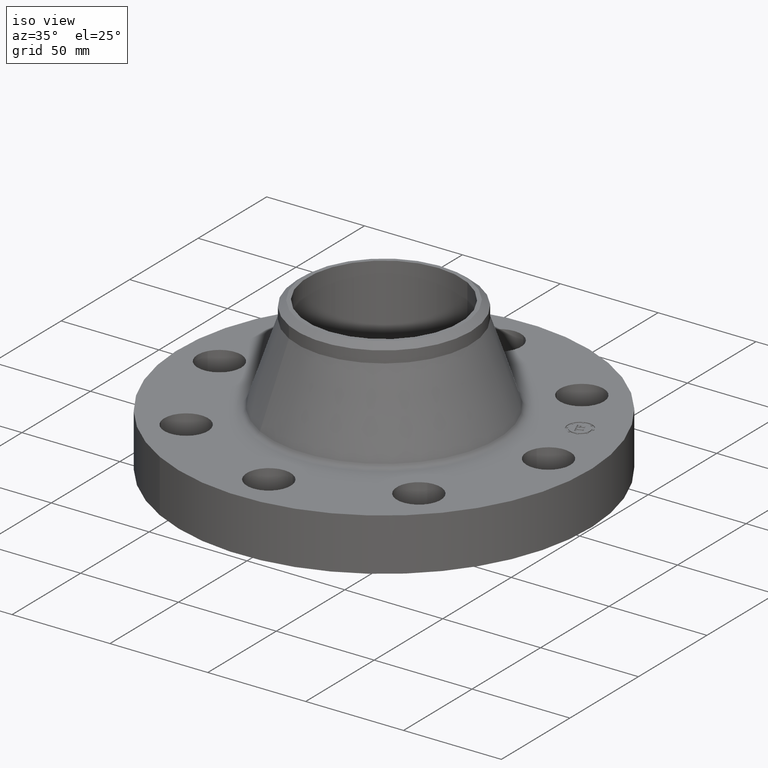
[diagram: clean part render]
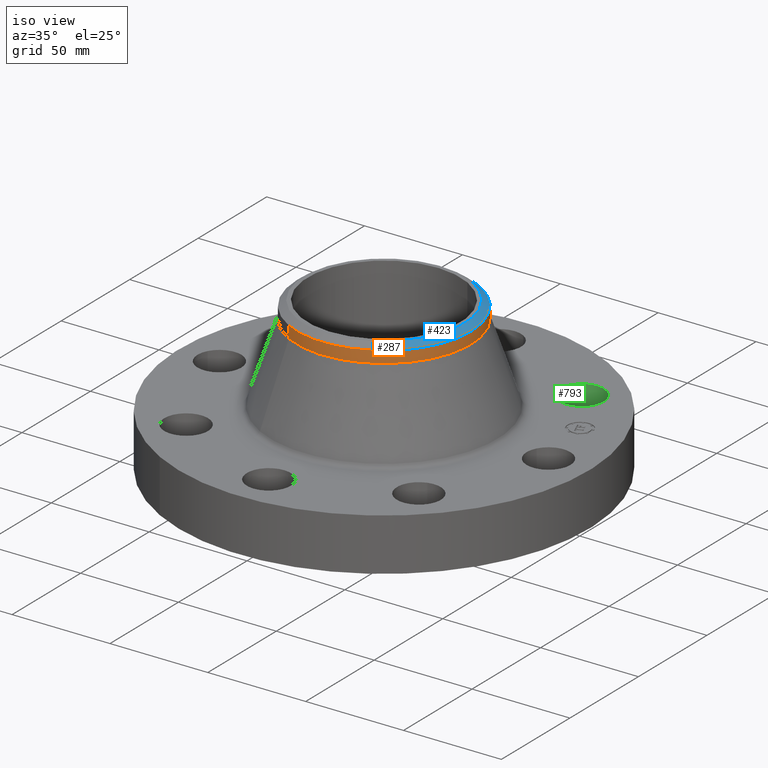
[diagram: same view with three faces highlighted in distinct colors, each labeled with its STEP entity id]
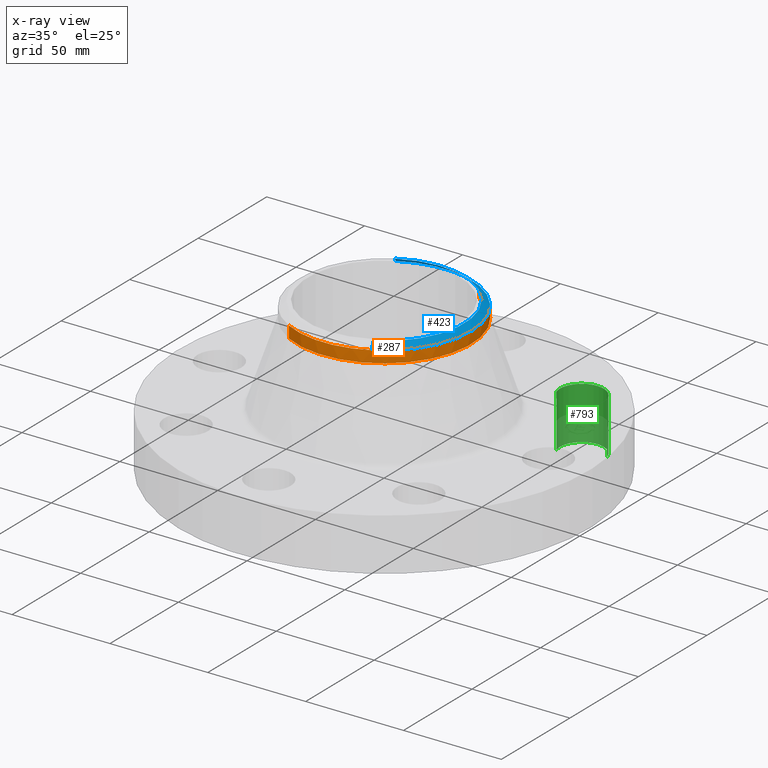
[diagram: x-ray of the same camera — body ghosted, the three highlighted faces saturated]
A machine part, iso view with three faces highlighted in distinct colors.
The next image is the same camera in x-ray (body ghosted, the three faces saturated) — at least one of them is partly hidden behind the body in this view.
Their STEP definitions:

[orange] entity #287 — the highlighted cylindrical surface (partial cylindrical patch) has radius 44.45 mm, axis along (0, 0, -1).
#220=AXIS2_PLACEMENT_3D('Circle Axis2P3D',#218,#219,$) ;
#252=AXIS2_PLACEMENT_3D('Cylinder Axis2P3D',#249,#250,#251) ;
#270=AXIS2_PLACEMENT_3D('Circle Axis2P3D',#268,#269,$) ;
#277=AXIS2_PLACEMENT_3D('Circle Axis2P3D',#275,#276,$) ;
#215=CARTESIAN_POINT('Vertex',(0.838994692561,1.53576948331,2.71845634604)) ;
#218=CARTESIAN_POINT('Axis2P3D Location',(0.,0.,2.71845634604)) ;
#222=CARTESIAN_POINT('Vertex',(-0.838994692561,-1.53576948331,2.71845634604)) ;
#249=CARTESIAN_POINT('Axis2P3D Location',(0.,0.,1.53000000001)) ;
#254=CARTESIAN_POINT('Line Origine',(-0.838994692561,-1.53576948331,2.83656658226)) ;
#258=CARTESIAN_POINT('Vertex',(-0.838994692561,-1.53576948331,2.95467681848)) ;
#261=CARTESIAN_POINT('Line Origine',(0.838994692561,1.53576948331,2.83656658226)) ;
#265=CARTESIAN_POINT('Vertex',(0.838994692561,1.53576948331,2.95467681848)) ;
#268=CARTESIAN_POINT('Axis2P3D Location',(0.,0.,2.95467681848)) ;
#272=CARTESIAN_POINT('Vertex',(0.838994692561,-1.53576948331,2.95467681848)) ;
#275=CARTESIAN_POINT('Axis2P3D Location',(0.,0.,2.95467681848)) ;
#219=DIRECTION('Axis2P3D Direction',(0.,0.,-0.0393700787402)) ;
#250=DIRECTION('Axis2P3D Direction',(0.,0.,-0.0393700787402)) ;
#251=DIRECTION('Axis2P3D XDirection',(-0.0188750212049,-0.0345504945626,0.)) ;
#255=DIRECTION('Vector Direction',(0.,0.,-0.0393700787402)) ;
#262=DIRECTION('Vector Direction',(0.,0.,-0.0393700787402)) ;
#269=DIRECTION('Axis2P3D Direction',(0.,0.,-0.0393700787402)) ;
#276=DIRECTION('Axis2P3D Direction',(0.,0.,-0.0393700787402)) ;
#256=VECTOR('Line Direction',#255,0.0393700787402) ;
#263=VECTOR('Line Direction',#262,0.0393700787402) ;
#281=ORIENTED_EDGE('',*,*,#260,.F.) ;
#282=ORIENTED_EDGE('',*,*,#224,.F.) ;
#283=ORIENTED_EDGE('',*,*,#267,.T.) ;
#284=ORIENTED_EDGE('',*,*,#274,.F.) ;
#285=ORIENTED_EDGE('',*,*,#279,.T.) ;
#287=ADVANCED_FACE('PartBody',(#286),#253,.T.) ;
#221=CIRCLE('generated circle',#220,1.75000000001) ;
#271=CIRCLE('generated circle',#270,1.75000000001) ;
#278=CIRCLE('generated circle',#277,1.75000000001) ;
#253=CYLINDRICAL_SURFACE('generated cylinder',#252,1.75000000001) ;
#224=EDGE_CURVE('',#216,#223,#221,.T.) ;
#260=EDGE_CURVE('',#223,#259,#257,.F.) ;
#267=EDGE_CURVE('',#216,#266,#264,.F.) ;
#274=EDGE_CURVE('',#273,#266,#271,.F.) ;
#279=EDGE_CURVE('',#273,#259,#278,.T.) ;
#280=EDGE_LOOP('',(#281,#282,#283,#284,#285)) ;
#286=FACE_OUTER_BOUND('',#280,.T.) ;
#257=LINE('Line',#254,#256) ;
#264=LINE('Line',#261,#263) ;
#216=VERTEX_POINT('',#215) ;
#223=VERTEX_POINT('',#222) ;
#259=VERTEX_POINT('',#258) ;
#266=VERTEX_POINT('',#265) ;
#273=VERTEX_POINT('',#272) ;

[blue] entity #423 — the highlighted conical surface has half-angle 52.5 deg.
#270=AXIS2_PLACEMENT_3D('Circle Axis2P3D',#268,#269,$) ;
#297=AXIS2_PLACEMENT_3D('Circle Axis2P3D',#295,#296,$) ;
#311=AXIS2_PLACEMENT_3D('Cone Axis2P3D',#308,#309,#310) ;
#404=AXIS2_PLACEMENT_3D('Circle Axis2P3D',#402,#403,$) ;
#265=CARTESIAN_POINT('Vertex',(0.838994692561,1.53576948331,2.95467681848)) ;
#268=CARTESIAN_POINT('Axis2P3D Location',(0.,0.,2.95467681848)) ;
#272=CARTESIAN_POINT('Vertex',(0.838994692561,-1.53576948331,2.95467681848)) ;
#292=CARTESIAN_POINT('Vertex',(-0.838994692561,1.53576948331,2.95467681848)) ;
#295=CARTESIAN_POINT('Axis2P3D Location',(0.,0.,2.95467681848)) ;
#308=CARTESIAN_POINT('Axis2P3D Location',(0.,0.,3.06000000001)) ;
#313=CARTESIAN_POINT('Line Origine',(0.806091755596,-1.47554106119,3.00733840925)) ;
#317=CARTESIAN_POINT('Vertex',(0.773188818632,-1.41531263907,3.06000000001)) ;
#324=CARTESIAN_POINT('Vertex',(-0.773188818632,1.41531263907,3.06000000001)) ;
#327=CARTESIAN_POINT('Line Origine',(-0.806091755596,1.47554106119,3.00733840925)) ;
#402=CARTESIAN_POINT('Axis2P3D Location',(0.,0.,3.06000000001)) ;
#269=DIRECTION('Axis2P3D Direction',(0.,0.,-0.0393700787402)) ;
#296=DIRECTION('Axis2P3D Direction',(0.,0.,-0.0393700787402)) ;
#309=DIRECTION('Axis2P3D Direction',(-0.,-0.,-0.0393700787402)) ;
#310=DIRECTION('Axis2P3D XDirection',(-0.0188750212049,0.0345504945626,0.)) ;
#314=DIRECTION('Vector Direction',(0.014974561121,-0.02741075027,-0.023966985394)) ;
#328=DIRECTION('Vector Direction',(-0.014974561121,0.02741075027,-0.023966985394)) ;
#403=DIRECTION('Axis2P3D Direction',(0.,0.,-0.0393700787402)) ;
#315=VECTOR('Line Direction',#314,0.0393700787402) ;
#329=VECTOR('Line Direction',#328,0.0393700787402) ;
#417=ORIENTED_EDGE('',*,*,#331,.F.) ;
#418=ORIENTED_EDGE('',*,*,#406,.F.) ;
#419=ORIENTED_EDGE('',*,*,#319,.T.) ;
#420=ORIENTED_EDGE('',*,*,#274,.T.) ;
#421=ORIENTED_EDGE('',*,*,#299,.F.) ;
#423=ADVANCED_FACE('PartBody',(#422),#312,.T.) ;
#271=CIRCLE('generated circle',#270,1.75000000001) ;
#298=CIRCLE('generated circle',#297,1.75000000001) ;
#405=CIRCLE('generated circle',#404,1.61274015749) ;
#312=CONICAL_SURFACE('Cone',#311,1.61274015749,0.916297857297) ;
#274=EDGE_CURVE('',#273,#266,#271,.F.) ;
#299=EDGE_CURVE('',#293,#266,#298,.T.) ;
#319=EDGE_CURVE('',#318,#273,#316,.T.) ;
#331=EDGE_CURVE('',#325,#293,#330,.T.) ;
#406=EDGE_CURVE('',#318,#325,#405,.F.) ;
#416=EDGE_LOOP('',(#417,#418,#419,#420,#421)) ;
#422=FACE_OUTER_BOUND('',#416,.T.) ;
#316=LINE('Line',#313,#315) ;
#330=LINE('Line',#327,#329) ;
#266=VERTEX_POINT('',#265) ;
#273=VERTEX_POINT('',#272) ;
#293=VERTEX_POINT('',#292) ;
#318=VERTEX_POINT('',#317) ;
#325=VERTEX_POINT('',#324) ;

[green] entity #793 — the highlighted cylindrical surface (edge-blend (fillet) strip) has radius 11.176 mm, axis along (0, 0, -1).
#574=AXIS2_PLACEMENT_3D('Circle Axis2P3D',#572,#573,$) ;
#766=AXIS2_PLACEMENT_3D('Cylinder Axis2P3D',#763,#764,#765) ;
#784=AXIS2_PLACEMENT_3D('Circle Axis2P3D',#782,#783,$) ;
#572=CARTESIAN_POINT('Axis2P3D Location',(2.34052344574,2.34052344574,0.)) ;
#576=CARTESIAN_POINT('Vertex',(1.91832160854,2.21664605203,0.)) ;
#578=CARTESIAN_POINT('Vertex',(2.76272528293,2.46440083944,-1.39870617276E-016)) ;
#763=CARTESIAN_POINT('Axis2P3D Location',(2.34052344574,2.34052344574,1.05606299213)) ;
#768=CARTESIAN_POINT('Line Origine',(1.91832160854,2.21664605203,0.530000000002)) ;
#772=CARTESIAN_POINT('Vertex',(1.91832160854,2.21664605203,1.06)) ;
#775=CARTESIAN_POINT('Line Origine',(2.76272528293,2.46440083944,0.530000000002)) ;
#779=CARTESIAN_POINT('Vertex',(2.76272528293,2.46440083944,1.06)) ;
#782=CARTESIAN_POINT('Axis2P3D Location',(2.34052344574,2.34052344574,1.06)) ;
#573=DIRECTION('Axis2P3D Direction',(0.,0.,-0.0393700787402)) ;
#764=DIRECTION('Axis2P3D Direction',(0.,0.,-0.0393700787402)) ;
#765=DIRECTION('Axis2P3D XDirection',(0.0377775444876,0.0110842335096,0.)) ;
#769=DIRECTION('Vector Direction',(0.,0.,-0.0393700787402)) ;
#776=DIRECTION('Vector Direction',(0.,0.,-0.0393700787402)) ;
#783=DIRECTION('Axis2P3D Direction',(0.,0.,-0.0393700787402)) ;
#770=VECTOR('Line Direction',#769,0.0393700787402) ;
#777=VECTOR('Line Direction',#776,0.0393700787402) ;
#788=ORIENTED_EDGE('',*,*,#774,.F.) ;
#789=ORIENTED_EDGE('',*,*,#580,.T.) ;
#790=ORIENTED_EDGE('',*,*,#781,.T.) ;
#791=ORIENTED_EDGE('',*,*,#786,.F.) ;
#793=ADVANCED_FACE('PartBody',(#792),#767,.F.) ;
#575=CIRCLE('generated circle',#574,0.440000000002) ;
#785=CIRCLE('generated circle',#784,0.440000000002) ;
#767=CYLINDRICAL_SURFACE('generated cylinder',#766,0.440000000002) ;
#580=EDGE_CURVE('',#577,#579,#575,.T.) ;
#774=EDGE_CURVE('',#577,#773,#771,.F.) ;
#781=EDGE_CURVE('',#579,#780,#778,.F.) ;
#786=EDGE_CURVE('',#773,#780,#785,.T.) ;
#787=EDGE_LOOP('',(#788,#789,#790,#791)) ;
#792=FACE_OUTER_BOUND('',#787,.T.) ;
#771=LINE('Line',#768,#770) ;
#778=LINE('Line',#775,#777) ;
#577=VERTEX_POINT('',#576) ;
#579=VERTEX_POINT('',#578) ;
#773=VERTEX_POINT('',#772) ;
#780=VERTEX_POINT('',#779) ;